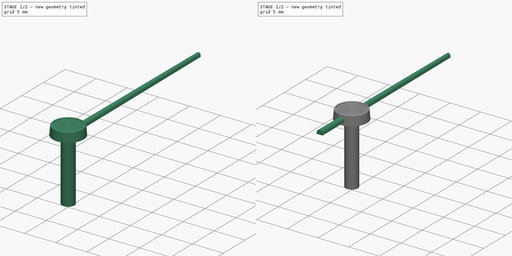
[diagram: build sequence overview — one tinted view per stage of 2, left to right]
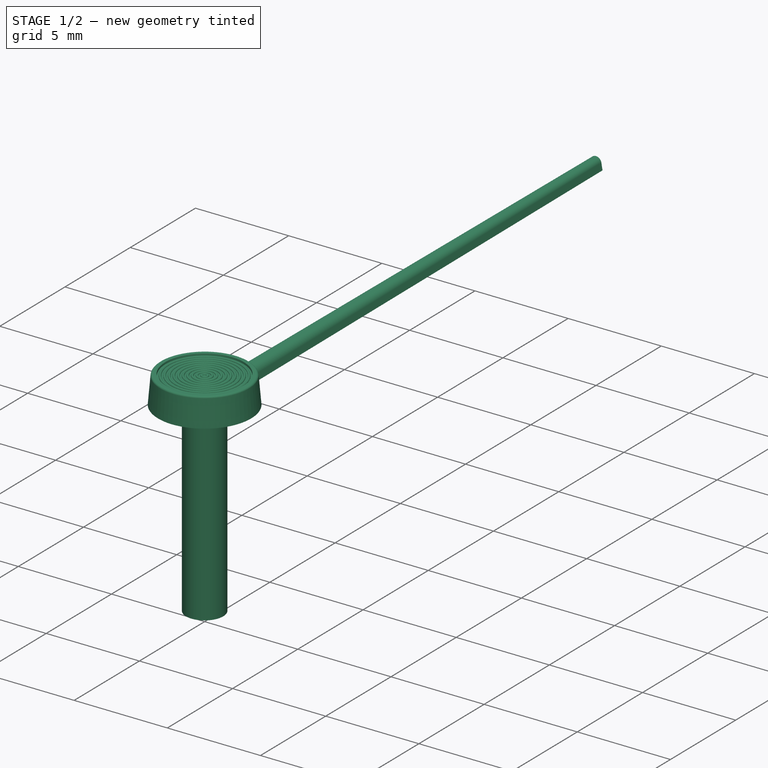
[diagram: stage 1 of 2 — iso view after this stage's code; geometry added in this stage tinted green]
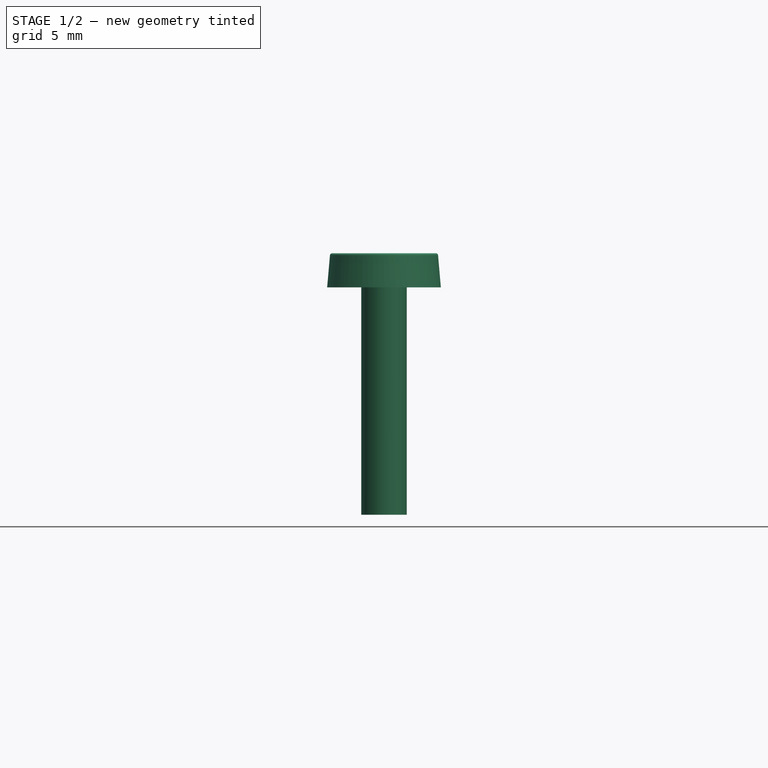
[diagram: stage 1 of 2 — front view after this stage's code; geometry added in this stage tinted green]
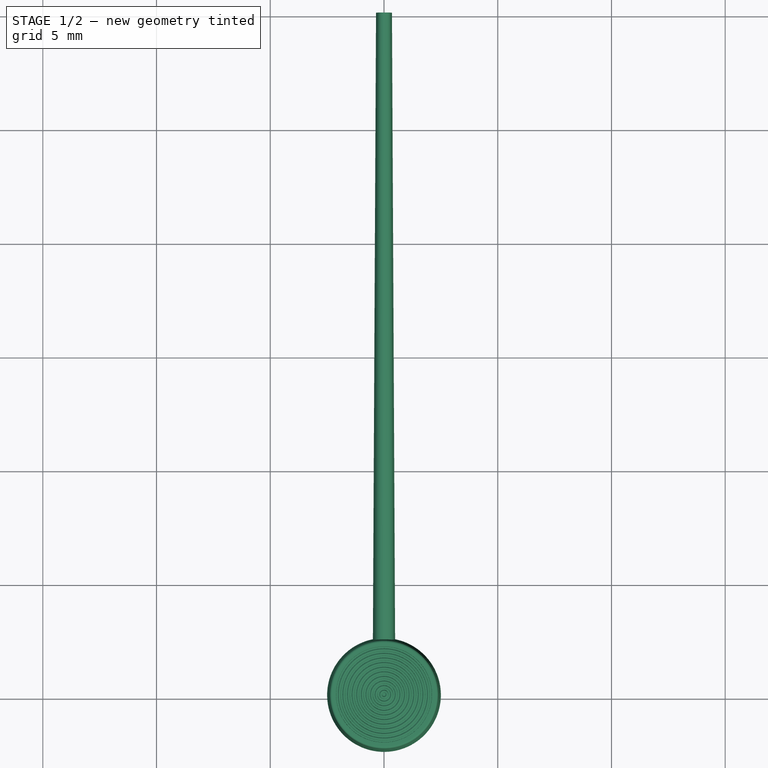
[diagram: stage 1 of 2 — top view after this stage's code; geometry added in this stage tinted green]
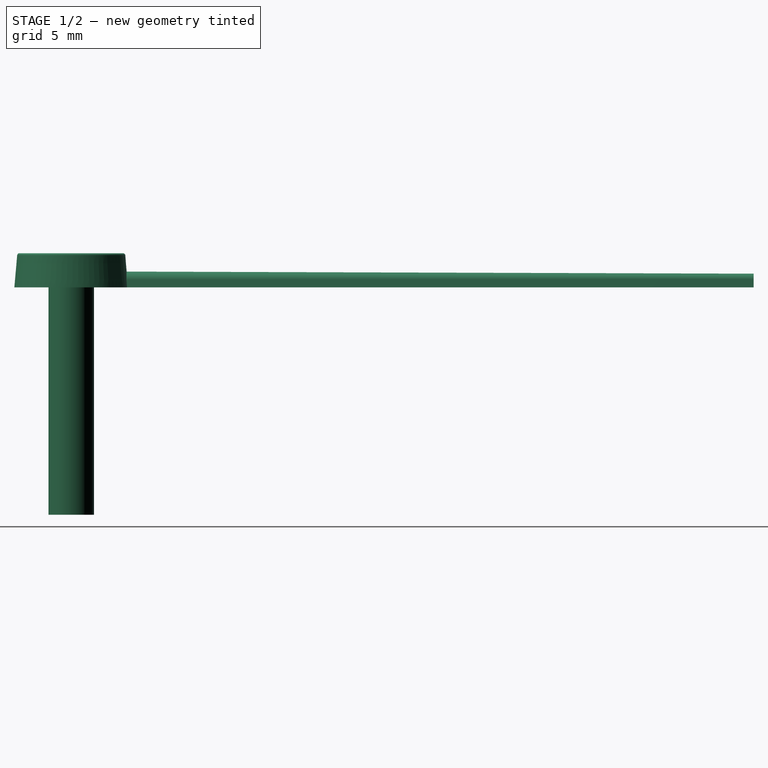
[diagram: stage 1 of 2 — right view after this stage's code; geometry added in this stage tinted green]
FCSTD DOCUMENT  (FreeCAD 0.19.4R1_voidlinux)
Label: hand_seconds
License: All rights reserved
LicenseURL: http://en.wikipedia.org/wiki/All_rights_reserved
objects: Sketcher::SketchObject×3, PartDesign::Body×2, PartDesign::AdditiveLoft×1, PartDesign::Revolution×1, Part::Fuse×1, PartDesign::CoordinateSystem×1, App::Part×1
note: 11 computed .brp shape members not serialized (recipe doc carries the construction recipe); baked Part::Feature solids carry a one-line shape summary decoded from their .brp
EXTERNAL_REF file=master_animator.FCStd obj=Variables

FEATURE [Sketcher::SketchObject] Sketch  label="fat_end"
  FullyConstrained = true
  MapMode = 5
  Placement = pos=(0,0,0) rot=(1,0,0;1.5708rad)
  Support = -> [XZ_Plane002]
  sketch-geometry (5):
    g0: LineSegment StartX=-0.5 StartY=0 StartZ=0 EndX=0.5 EndY=0 EndZ=0
    g1: LineSegment StartX=-0.5 StartY=0 StartZ=0 EndX=-0.441963 EndY=0.329146 EndZ=0
    g2: LineSegment StartX=0.5 StartY=0 StartZ=0 EndX=0.441963 EndY=0.329146 EndZ=0
    g3: ArcOfCircle CenterX=0 CenterY=0.25122 CenterZ=0 NormalX=0 NormalY=0 NormalZ=1 AngleXU=0 Radius=0.44878 StartAngle=0.174523 EndAngle=2.96707
    g4: GeomPoint X=0 Y=0.7 Z=0
  constraints (13):
    c: PointOnObject(g0,g-1)
    c: Coincident(g1,g0)
    c: Coincident(g2,g0)
    c: Coincident(g3,g1)
    c: Coincident(g3,g2)
    c: Symmetric(g0,g0,g-2)
    c: Symmetric(g2,g1,g-2)
    c: Tangent(g3,g1)
    c: PointOnObject(g4,g3)
    c: PointOnObject(g4,g-2)
    c: DistanceY(g0,g4) = 0.7
    c: Distance(g0) = 1
    c: Angle(g-1,g1) = 1.39626
FEATURE [Sketcher::SketchObject] Sketch001  label="thin_end"
  AttachmentOffset = pos=(0,0,-30) rot=(0,0,1;0rad)
  FullyConstrained = true
  MapMode = 5
  Placement = pos=(0,30,6.7e-15) rot=(1,0,0;1.5708rad)
  Support = -> [XZ_Plane002]
  sketch-geometry (5):
    g0: LineSegment StartX=-0.35 StartY=0 StartZ=0 EndX=0.35 EndY=0 EndZ=0
    g1: LineSegment StartX=-0.35 StartY=0 StartZ=0 EndX=-0.286609 EndY=0.359509 EndZ=0
    g2: LineSegment StartX=0.35 StartY=0 StartZ=0 EndX=0.286609 EndY=0.359509 EndZ=0
    g3: ArcOfCircle CenterX=0 CenterY=0.308969 CenterZ=0 NormalX=0 NormalY=0 NormalZ=1 AngleXU=0 Radius=0.291031 StartAngle=0.174544 EndAngle=2.96705
    g4: GeomPoint X=0 Y=0.6 Z=0
  constraints (13):
    c: PointOnObject(g0,g-1)
    c: Coincident(g1,g0)
    c: Coincident(g2,g0)
    c: Coincident(g3,g1)
    c: Coincident(g3,g2)
    c: Symmetric(g0,g0,g-2)
    c: Symmetric(g2,g1,g-2)
    c: Tangent(g3,g1)
    c: PointOnObject(g4,g3)
    c: PointOnObject(g4,g-2)
    c: DistanceY(g0,g4) = 0.6
    c: Distance(g0) = 0.7
    c: Angle(g-1,g1) = 1.39626
FEATURE [PartDesign::AdditiveLoft] AdditiveLoft
  Closed = false
  Placement = pos=(0,0,0) rot=(1,0,0;1.5708rad)
  Profile = -> Sketch
  Ruled = false
  Sections = -> [Sketch001]
FEATURE [PartDesign::Body] Body001  label="hand"
  Group = -> [Sketch,Sketch001,AdditiveLoft]
  Origin = -> Origin002
  Placement = pos=(0,-7.5,0.5) rot=(0,0,1;0rad)
  Tip = -> AdditiveLoft
FEATURE [Sketcher::SketchObject] Sketch002
  FullyConstrained = true
  MapMode = 5
  Placement = pos=(0,0,0) rot=(0.57735,0.57735,0.57735;2.0944rad)
  Support = -> [YZ_Plane001]
  sketch-geometry (32):
    g0: LineSegment StartX=-2.5 StartY=0 StartZ=0 EndX=-2.37675 EndY=1.40872 EndZ=0
    g1: LineSegment StartX=-2.5 StartY=0 StartZ=0 EndX=-1 EndY=0 EndZ=0
    g2: LineSegment StartX=-1 StartY=0 StartZ=0 EndX=-1 EndY=-10 EndZ=0
    g3: LineSegment StartX=-1 StartY=-10 StartZ=0 EndX=-3.26e-14 EndY=-10 EndZ=0
    g4: LineSegment StartX=-3.26e-14 StartY=-10 StartZ=0 EndX=-5.356e-13 EndY=1.4 EndZ=0
    g5: LineSegment StartX=-2.27713 StartY=1.5 StartZ=0 EndX=-2.10875 EndY=1.5 EndZ=0
    g6: LineSegment StartX=-2.10875 StartY=1.5 StartZ=0 EndX=-2.1 EndY=1.4 EndZ=0
    g7: LineSegment StartX=-2.1 StartY=1.4 StartZ=0 EndX=-2.025 EndY=1.4 EndZ=0
    g8: ArcOfCircle CenterX=-1.96125 CenterY=1.4 CenterZ=0 NormalX=0 NormalY=0 NormalZ=1 AngleXU=0 Radius=0.06375 StartAngle=-1.803e-13 EndAngle=3.14159
    g9: LineSegment StartX=-2.1 StartY=1.4 StartZ=0 EndX=-5.356e-13 EndY=1.4 EndZ=0
    g10: LineSegment StartX=-1.8975 StartY=1.4 StartZ=0 EndX=-1.8225 EndY=1.4 EndZ=0
    g11: LineSegment StartX=-1.695 StartY=1.4 StartZ=0 EndX=-1.62 EndY=1.4 EndZ=0
    g12: LineSegment StartX=-1.4925 StartY=1.4 StartZ=0 EndX=-1.4175 EndY=1.4 EndZ=0
    g13: LineSegment StartX=-1.0875 StartY=1.4 StartZ=0 EndX=-1.0125 EndY=1.4 EndZ=0
    g14: LineSegment StartX=-0.885 StartY=1.4 StartZ=0 EndX=-0.81 EndY=1.4 EndZ=0
    g15: LineSegment StartX=-0.6825 StartY=1.4 StartZ=0 EndX=-0.6075 EndY=1.4 EndZ=0
    g16: LineSegment StartX=-0.48 StartY=1.4 StartZ=0 EndX=-0.405 EndY=1.4 EndZ=0
    g17: LineSegment StartX=-0.2775 StartY=1.4 StartZ=0 EndX=-0.2025 EndY=1.4 EndZ=0
    g18: LineSegment StartX=-0.075 StartY=1.4 StartZ=0 EndX=-5.356e-13 EndY=1.4 EndZ=0
    g19: LineSegment StartX=-1.29 StartY=1.4 StartZ=0 EndX=-1.215 EndY=1.4 EndZ=0
    g20: ArcOfCircle CenterX=-1.75875 CenterY=1.4 CenterZ=0 NormalX=0 NormalY=0 NormalZ=1 AngleXU=0 Radius=0.06375 StartAngle=-3.473e-13 EndAngle=3.14159
    g21: ArcOfCircle CenterX=-1.55625 CenterY=1.4 CenterZ=0 NormalX=0 NormalY=0 NormalZ=1 AngleXU=0 Radius=0.06375 StartAngle=-3.082e-13 EndAngle=3.14159
    g22: ArcOfCircle CenterX=-1.35375 CenterY=1.4 CenterZ=0 NormalX=0 NormalY=0 NormalZ=1 AngleXU=0 Radius=0.06375 StartAngle=-2.673e-13 EndAngle=3.14159
    g23: ArcOfCircle CenterX=-1.15125 CenterY=1.4 CenterZ=0 NormalX=0 NormalY=0 NormalZ=1 AngleXU=0 Radius=0.06375 StartAngle=-2.292e-13 EndAngle=3.14159
    g24: ArcOfCircle CenterX=-0.94875 CenterY=1.4 CenterZ=0 NormalX=0 NormalY=0 NormalZ=1 AngleXU=0 Radius=0.06375 StartAngle=-1.883e-13 EndAngle=3.14159
    g25: ArcOfCircle CenterX=-0.74625 CenterY=1.4 CenterZ=0 NormalX=0 NormalY=0 NormalZ=1 AngleXU=0 Radius=0.06375 StartAngle=-1.439e-13 EndAngle=3.14159
    g26: ArcOfCircle CenterX=-0.54375 CenterY=1.4 CenterZ=0 NormalX=0 NormalY=0 NormalZ=1 AngleXU=0 Radius=0.06375 StartAngle=-1.084e-13 EndAngle=3.14159
    g27: ArcOfCircle CenterX=-0.34125 CenterY=1.4 CenterZ=0 NormalX=0 NormalY=0 NormalZ=1 AngleXU=0 Radius=0.06375 StartAngle=-6.93e-14 EndAngle=3.14159
    g28: ArcOfCircle CenterX=-0.13875 CenterY=1.4 CenterZ=0 NormalX=0 NormalY=0 NormalZ=1 AngleXU=0 Radius=0.06375 StartAngle=-3.02e-14 EndAngle=3.14159
    g29: LineSegment StartX=-2.1 StartY=1.4 StartZ=0 EndX=-5.356e-13 EndY=1.4 EndZ=0
    g30: LineSegment StartX=-2.1 StartY=1.4 StartZ=0 EndX=-2.1 EndY=1.4 EndZ=0
    g31: ArcOfCircle CenterX=-2.27713 CenterY=1.4 CenterZ=0 NormalX=0 NormalY=0 NormalZ=1 AngleXU=0 Radius=0.1 StartAngle=1.5708 EndAngle=3.05433
  constraints (103):
    c: PointOnObject(g0,g-1)
    c: Coincident(g1,g0)
    c: PointOnObject(g1,g-1)
    c: Coincident(g2,g1)
    c: Vertical(g2)
    c: Coincident(g3,g2)
    c: PointOnObject(g3,g-2)
    c: Horizontal(g3)
    c: Coincident(g4,g3)
    c: PointOnObject(g4,g-2)
    c: Distance(g3) = 1
    c: Distance(g2) = 10
    c: Horizontal(g5)
    c: Coincident(g6,g5)
    c: Distance(g0,g4) = 2.5
    c: Coincident(g7,g6)
    c: Horizontal(g7)
    c: DistanceX(g0,g6) = 0.4
    c: Angle(g0,g-2) = 0.0872665
    c: Angle(g4,g6) = 0.0872665
    c: DistanceY(g6,g5) = 0.1
    c: Coincident(g8,g7)
    c: Coincident(g9,g6)
    c: Horizontal(g9)
    c: PointOnObject(g8,g9)
    c: Coincident(g10,g8)
    c: PointOnObject(g10,g9)
    c: PointOnObject(g11,g9)
    c: PointOnObject(g11,g9)
    c: PointOnObject(g12,g9)
    c: PointOnObject(g12,g9)
    c: PointOnObject(g13,g9)
    c: PointOnObject(g13,g9)
    c: PointOnObject(g14,g9)
    c: PointOnObject(g14,g9)
    c: PointOnObject(g15,g9)
    c: PointOnObject(g15,g9)
    c: PointOnObject(g16,g9)
    c: PointOnObject(g16,g9)
    c: PointOnObject(g17,g9)
    c: PointOnObject(g17,g9)
    c: PointOnObject(g18,g9)
    c: Equal(g7,g10)
    c: Equal(g10,g11)
    c: Equal(g11,g12)
    c: Equal(g12,g13)
    c: Equal(g13,g14)
    c: Equal(g14,g15)
    c: Equal(g15,g16)
    c: Equal(g16,g17)
    c: Equal(g17,g18)
    c: Distance(g7) = 0.075
    c: PointOnObject(g19,g9)
    c: PointOnObject(g19,g9)
    c: Equal(g19,g10)
    c: Coincident(g20,g10)
    c: Coincident(g20,g11)
    c: Coincident(g21,g11)
    c: Coincident(g21,g12)
    c: Coincident(g22,g12)
    c: Coincident(g22,g19)
    c: Coincident(g23,g19)
    c: Coincident(g23,g13)
    c: Coincident(g24,g13)
    c: Coincident(g24,g14)
    c: Coincident(g25,g14)
    c: Coincident(g25,g15)
    c: Coincident(g26,g15)
    c: Coincident(g26,g16)
    c: Coincident(g27,g16)
    c: Coincident(g27,g17)
    c: Coincident(g28,g17)
    c: Coincident(g28,g18)
    c: Coincident(g30,g6)
    c: Coincident(g30,g29)
    c: Vertical(g30)
    c: PointOnObject(g8,g29)
    c: PointOnObject(g20,g29)
    c: PointOnObject(g21,g29)
    c: PointOnObject(g22,g29)
    c: PointOnObject(g23,g29)
    c: PointOnObject(g24,g29)
    c: PointOnObject(g25,g29)
    c: PointOnObject(g26,g29)
    c: PointOnObject(g27,g29)
    c: PointOnObject(g28,g29)
    c: Coincident(g18,g9)
    c: Equal(g8,g20)
    c: Equal(g20,g21)
    c: Equal(g21,g22)
    c: Equal(g22,g23)
    c: Equal(g23,g24)
    c: Equal(g24,g25)
    c: Equal(g25,g26)
    c: Equal(g26,g27)
    c: Equal(g27,g28)
    c: Coincident(g29,g18)
    c: Coincident(g4,g18)
    c: PointOnObject(g8,g9)
    c: Tangent(g0,g31) = 1.5708
    c: Tangent(g5,g31) = 1.5708
    c: DistanceY(g0,g5) = 1.5
    c: Radius(g31) = 0.1
FEATURE [PartDesign::Revolution] Revolution
  Angle = 360
  Axis = (-2e-16,3e-16,1)
  Base = (0,0,0)
  Placement = pos=(0,0,0) rot=(0.57735,0.57735,0.57735;2.0944rad)
  Profile = -> Sketch002
  ReferenceAxis = -> Sketch002 [V_Axis]
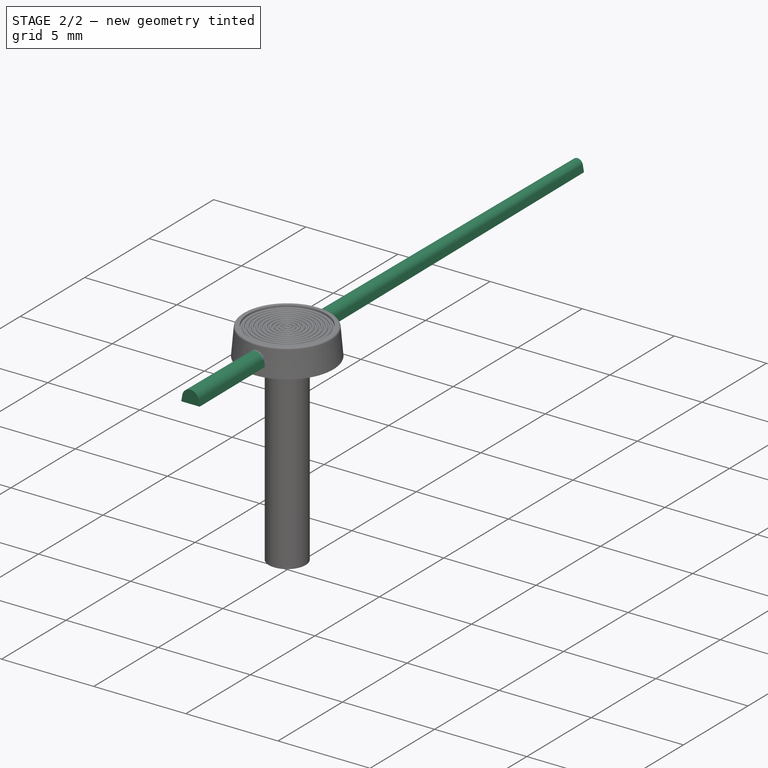
[diagram: stage 2 of 2 — iso view after this stage's code; geometry added in this stage tinted green]
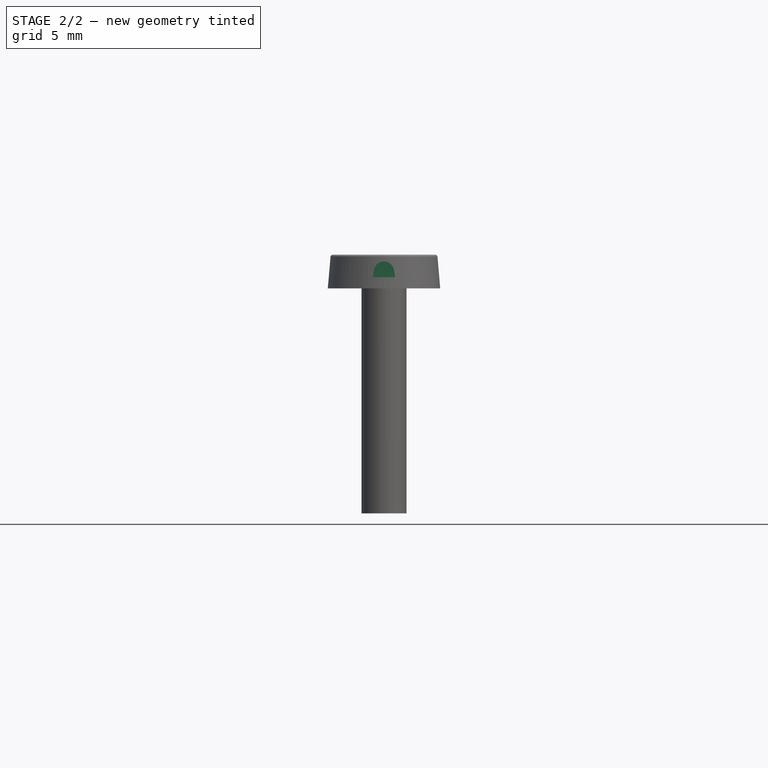
[diagram: stage 2 of 2 — front view after this stage's code; geometry added in this stage tinted green]
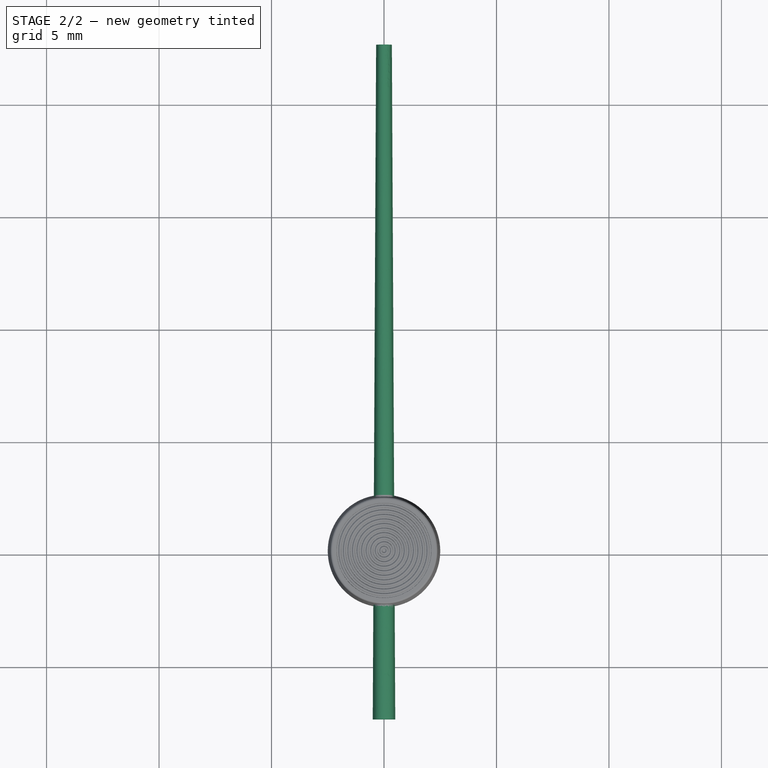
[diagram: stage 2 of 2 — top view after this stage's code; geometry added in this stage tinted green]
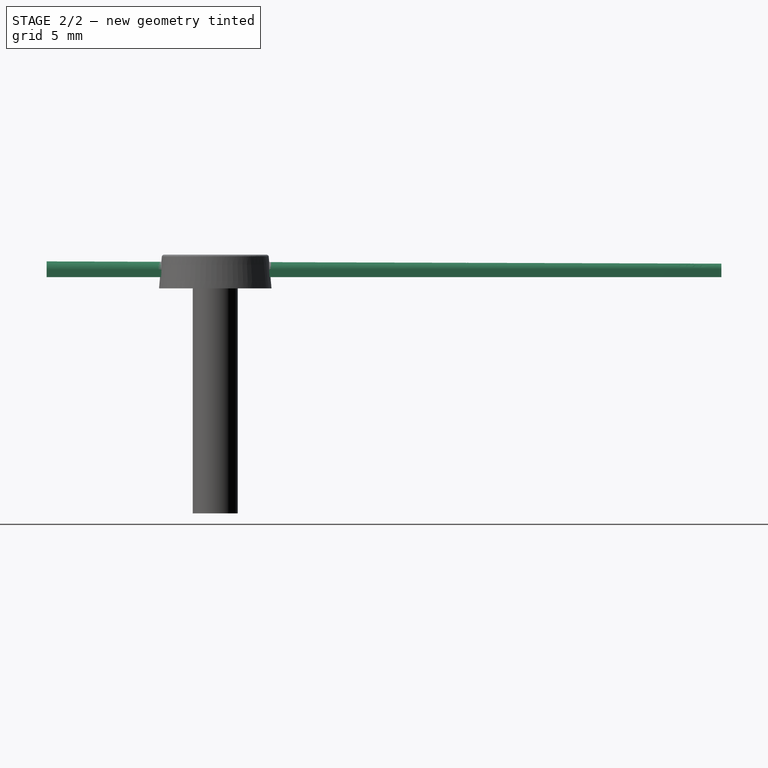
[diagram: stage 2 of 2 — right view after this stage's code; geometry added in this stage tinted green]
FEATURE [PartDesign::Body] Body  label="center"
  Group = -> [Sketch002,Revolution]
  Origin = -> Origin001
  Tip = -> Revolution
FEATURE [Part::Fuse] Fusion
  Base = -> Body
  Tool = -> Body001
FEATURE [PartDesign::CoordinateSystem] LCS_topcenter
  AttacherType = Attacher::AttachEngine3D
  MapMode = 5
  Placement = pos=(-8e-16,5e-16,1.4) rot=(0,0,1;0rad)
  Support = -> [Fusion]
  expr: .AttachmentOffset.Base.z = -master_animator#Variables.explode * 7
FEATURE [App::Part] Part  label="hand_seconds"
  Group = -> [Body,Body001,Fusion,LCS_topcenter]
  Origin = -> Origin
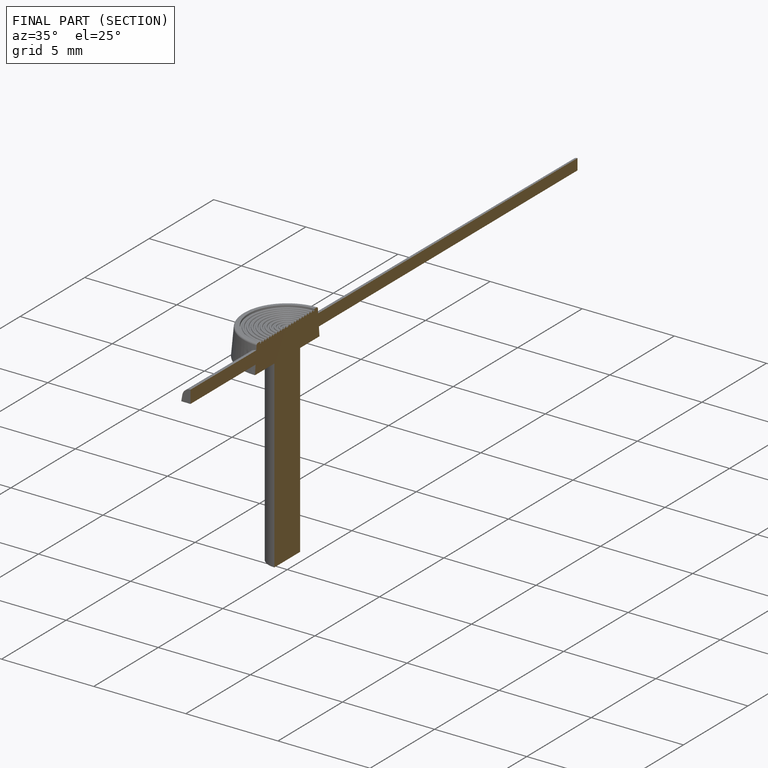
[diagram: finished part — half-section view (interior)]
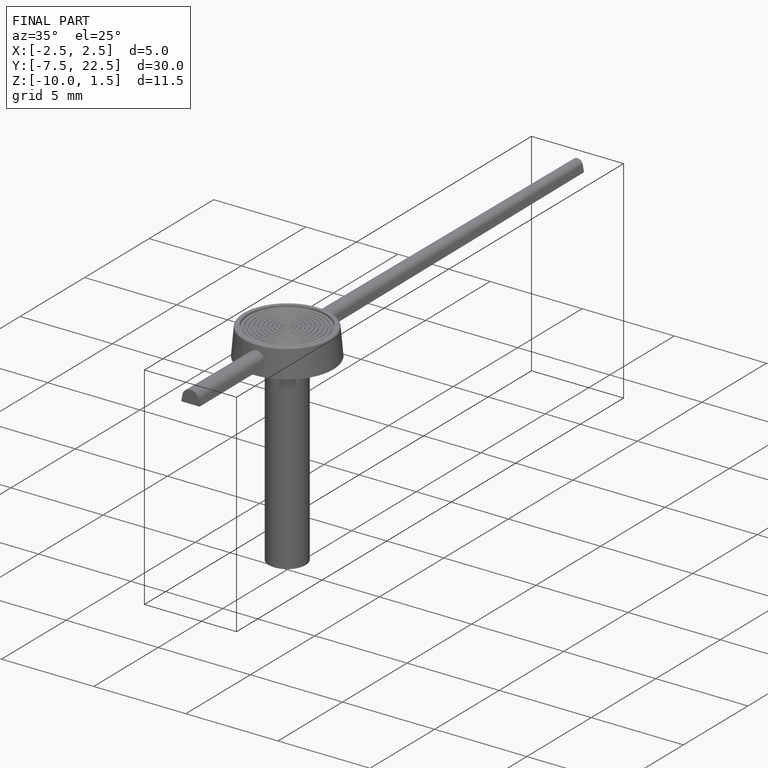
[diagram: finished part — iso view with bounding-box wireframe]
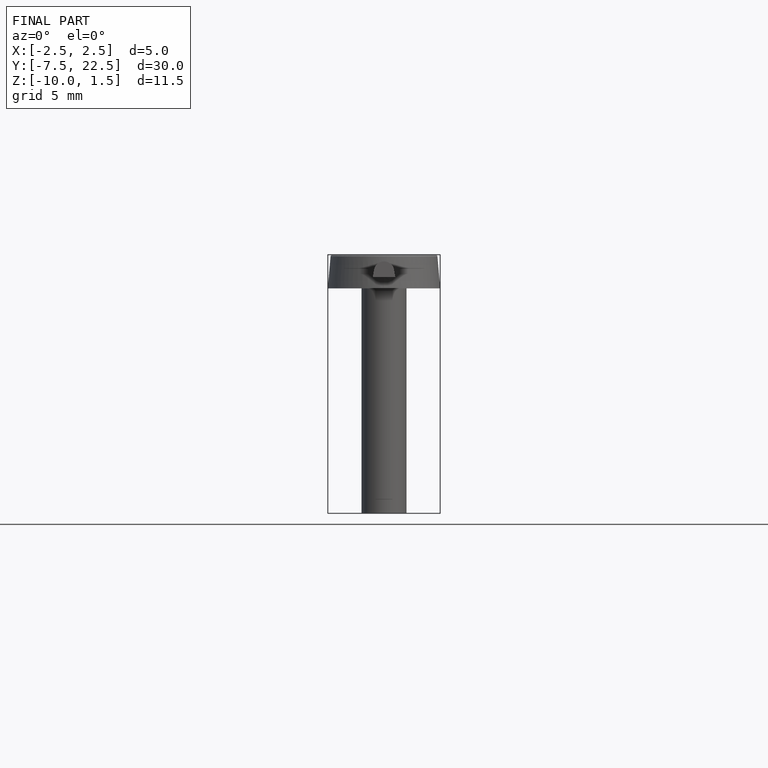
[diagram: finished part — front view with bounding-box wireframe]
